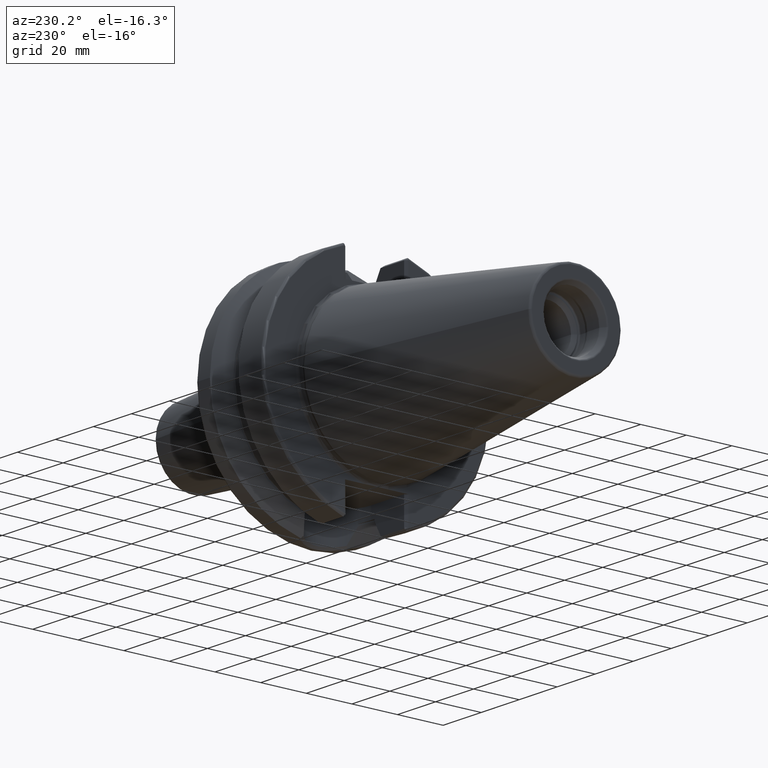
[diagram: clean part render]
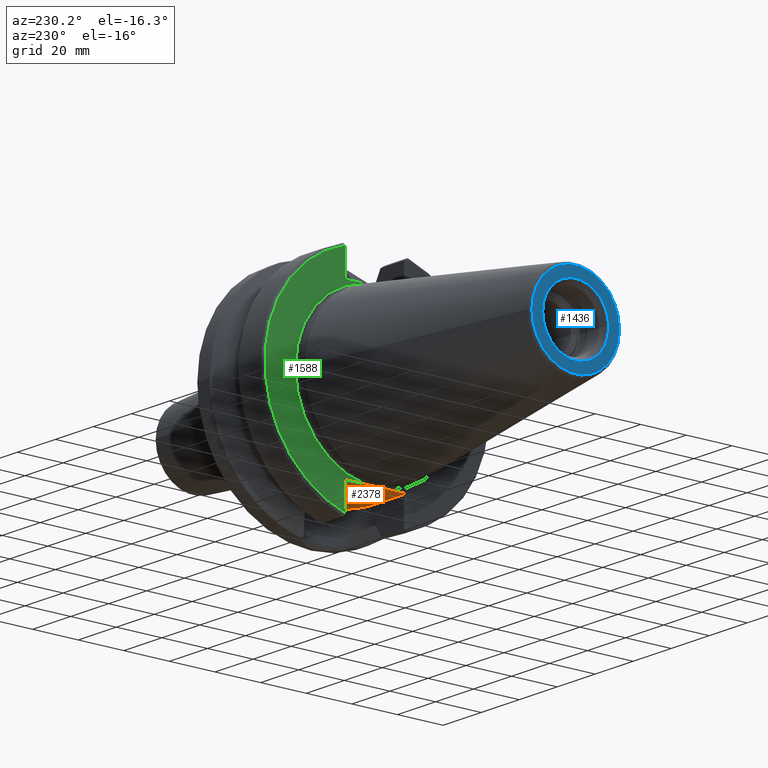
[diagram: same view with three faces highlighted in distinct colors, each labeled with its STEP entity id]
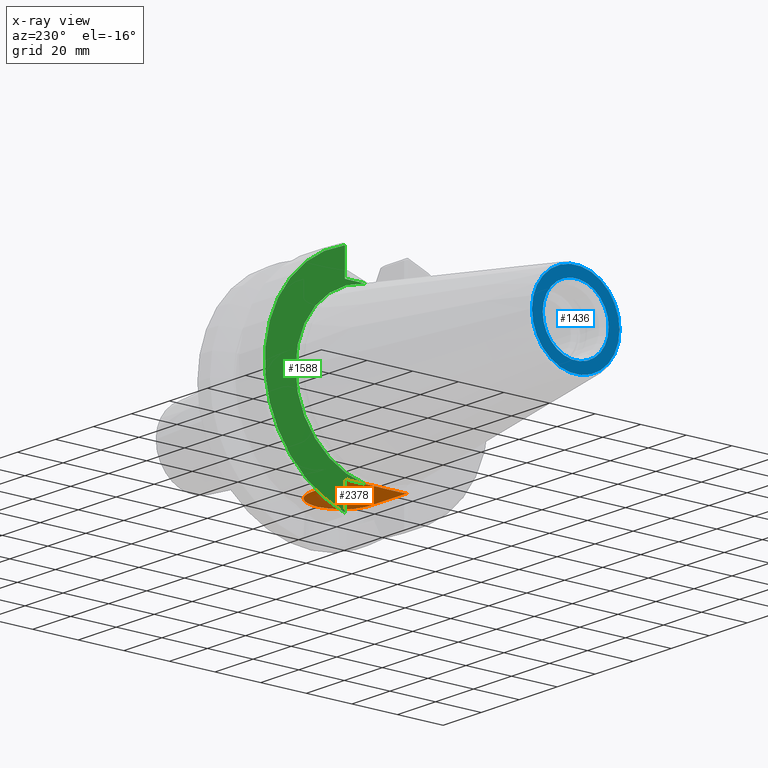
[diagram: x-ray of the same camera — body ghosted, the three highlighted faces saturated]
A machine part, auxiliary view with three faces highlighted in distinct colors.
The next image is the same camera in x-ray (body ghosted, the three faces saturated) — at least one of them is partly hidden behind the body in this view.
Their STEP definitions:

[orange] entity #2378 — the highlighted planar face has unit normal (0, 0, 1).
#116=CARTESIAN_POINT('',(3.E0,5.151759408202E0,-3.52E1));
#117=CARTESIAN_POINT('',(3.E0,4.661054534870E0,-3.52E1));
#118=CARTESIAN_POINT('',(2.985185415827E0,3.679726334622E0,-3.52E1));
#119=CARTESIAN_POINT('',(2.950323079572E0,2.207949548567E0,-3.52E1));
#120=CARTESIAN_POINT('',(2.926055980585E0,7.360772187789E-1,-3.52E1));
#121=CARTESIAN_POINT('',(2.926055295134E0,-7.360096390892E-1,-3.52E1));
#122=CARTESIAN_POINT('',(2.950321957577E0,-2.207902449886E0,-3.52E1));
#123=CARTESIAN_POINT('',(2.985185074233E0,-3.679708044781E0,-3.52E1));
#124=CARTESIAN_POINT('',(3.E0,-4.661048861242E0,-3.52E1));
#125=CARTESIAN_POINT('',(3.E0,-5.151759408202E0,-3.52E1));
#147=DIRECTION('',(7.071067811865E-1,-7.071067811865E-1,0.E0));
#148=VECTOR('',#147,1.414213562373E0);
#149=CARTESIAN_POINT('',(3.E0,1.39025E1,-3.52E1));
#150=LINE('',#149,#148);
#733=DIRECTION('',(-7.071067811865E-1,-7.071067811865E-1,0.E0));
#734=VECTOR('',#733,1.414213562373E0);
#735=CARTESIAN_POINT('',(4.E0,-1.29025E1,-3.52E1));
#736=LINE('',#735,#734);
#737=DIRECTION('',(-1.E0,0.E0,0.E0));
#738=VECTOR('',#737,1.73475E1);
#739=CARTESIAN_POINT('',(2.13475E1,1.29025E1,-3.52E1));
#740=LINE('',#739,#738);
#741=DIRECTION('',(0.E0,-1.E0,0.E0));
#742=VECTOR('',#741,8.750740591798E0);
#743=CARTESIAN_POINT('',(3.E0,1.39025E1,-3.52E1));
#744=LINE('',#743,#742);
#745=DIRECTION('',(0.E0,-1.E0,0.E0));
#746=VECTOR('',#745,8.750740591798E0);
#747=CARTESIAN_POINT('',(3.E0,-5.151759408202E0,-3.52E1));
#748=LINE('',#747,#746);
#749=DIRECTION('',(1.E0,0.E0,0.E0));
#750=VECTOR('',#749,1.73475E1);
#751=CARTESIAN_POINT('',(4.E0,-1.29025E1,-3.52E1));
#752=LINE('',#751,#750);
#753=CARTESIAN_POINT('',(2.13475E1,0.E0,-3.52E1));
#754=DIRECTION('',(0.E0,0.E0,1.E0));
#755=DIRECTION('',(0.E0,-1.E0,0.E0));
#756=AXIS2_PLACEMENT_3D('',#753,#754,#755);
#1314=CARTESIAN_POINT('',(2.13475E1,-1.29025E1,-3.52E1));
#1315=CARTESIAN_POINT('',(2.13475E1,1.29025E1,-3.52E1));
#1316=VERTEX_POINT('',#1314);
#1317=VERTEX_POINT('',#1315);
#1318=CARTESIAN_POINT('',(3.E0,5.151759408202E0,-3.52E1));
#1319=VERTEX_POINT('',#1318);
#1320=CARTESIAN_POINT('',(3.E0,-5.151759408202E0,-3.52E1));
#1321=VERTEX_POINT('',#1320);
#1367=CARTESIAN_POINT('',(4.E0,1.29025E1,-3.52E1));
#1369=VERTEX_POINT('',#1367);
#1371=CARTESIAN_POINT('',(3.E0,1.39025E1,-3.52E1));
#1373=VERTEX_POINT('',#1371);
#1377=CARTESIAN_POINT('',(3.E0,-1.39025E1,-3.52E1));
#1378=VERTEX_POINT('',#1377);
#1379=CARTESIAN_POINT('',(4.E0,-1.29025E1,-3.52E1));
#1381=VERTEX_POINT('',#1379);
#2363=CARTESIAN_POINT('',(0.E0,0.E0,-3.52E1));
#2364=DIRECTION('',(0.E0,0.E0,1.E0));
#2365=DIRECTION('',(1.E0,0.E0,0.E0));
#2366=AXIS2_PLACEMENT_3D('',#2363,#2364,#2365);
#2367=PLANE('',#2366);
#2368=ORIENTED_EDGE('',*,*,#1639,.T.);
#2369=ORIENTED_EDGE('',*,*,#1620,.F.);
#2370=ORIENTED_EDGE('',*,*,#1584,.T.);
#2371=ORIENTED_EDGE('',*,*,#1563,.T.);
#2372=ORIENTED_EDGE('',*,*,#1596,.T.);
#2373=ORIENTED_EDGE('',*,*,#2358,.F.);
#2374=ORIENTED_EDGE('',*,*,#1794,.T.);
#2375=ORIENTED_EDGE('',*,*,#1888,.T.);
#2376=EDGE_LOOP('',(#2368,#2369,#2370,#2371,#2372,#2373,#2374,#2375));
#2377=FACE_OUTER_BOUND('',#2376,.F.);
#2378=ADVANCED_FACE('',(#2377),#2367,.F.);
#126=B_SPLINE_CURVE_WITH_KNOTS('',3,(#116,#117,#118,#119,#120,#121,#122,#123,
#124,#125),.UNSPECIFIED.,.F.,.F.,(4,1,1,1,1,1,1,4),(0.E0,1.428571428571E-1,
2.857142857143E-1,4.285714285714E-1,5.714285714286E-1,7.142857142857E-1,
8.571428571429E-1,1.E0),.UNSPECIFIED.);
#757=CIRCLE('',#756,1.29025E1);
#1563=EDGE_CURVE('',#1319,#1321,#126,.T.);
#1584=EDGE_CURVE('',#1373,#1319,#744,.T.);
#1596=EDGE_CURVE('',#1321,#1378,#748,.T.);
#1620=EDGE_CURVE('',#1373,#1369,#150,.T.);
#1639=EDGE_CURVE('',#1317,#1369,#740,.T.);
#1794=EDGE_CURVE('',#1381,#1316,#752,.T.);
#1888=EDGE_CURVE('',#1316,#1317,#757,.T.);
#2358=EDGE_CURVE('',#1381,#1378,#736,.T.);

[blue] entity #1436 — the highlighted planar face has unit normal (1, 0, 0).
#2=CARTESIAN_POINT('',(-1.018E2,0.E0,0.E0));
#3=DIRECTION('',(-1.E0,0.E0,0.E0));
#4=DIRECTION('',(0.E0,1.E0,0.E0));
#5=AXIS2_PLACEMENT_3D('',#2,#3,#4);
#7=CARTESIAN_POINT('',(-1.018E2,0.E0,0.E0));
#8=DIRECTION('',(1.E0,0.E0,0.E0));
#9=DIRECTION('',(0.E0,1.E0,0.E0));
#10=AXIS2_PLACEMENT_3D('',#7,#8,#9);
#12=CARTESIAN_POINT('',(-1.018E2,0.E0,0.E0));
#13=DIRECTION('',(1.E0,0.E0,0.E0));
#14=DIRECTION('',(0.E0,1.E0,0.E0));
#15=AXIS2_PLACEMENT_3D('',#12,#13,#14);
#17=CARTESIAN_POINT('',(-1.018E2,0.E0,0.E0));
#18=DIRECTION('',(1.E0,0.E0,0.E0));
#19=DIRECTION('',(0.E0,-1.E0,0.E0));
#20=AXIS2_PLACEMENT_3D('',#17,#18,#19);
#1169=CARTESIAN_POINT('',(-1.018E2,1.921319540766E1,0.E0));
#1171=VERTEX_POINT('',#1169);
#1173=CARTESIAN_POINT('',(-1.018E2,-1.921319540766E1,0.E0));
#1175=VERTEX_POINT('',#1173);
#1298=CARTESIAN_POINT('',(-1.018E2,1.446188021535E1,0.E0));
#1299=CARTESIAN_POINT('',(-1.018E2,-1.446188021535E1,0.E0));
#1300=VERTEX_POINT('',#1298);
#1301=VERTEX_POINT('',#1299);
#1419=CARTESIAN_POINT('',(-1.018E2,0.E0,0.E0));
#1420=DIRECTION('',(1.E0,0.E0,0.E0));
#1421=DIRECTION('',(0.E0,-1.E0,0.E0));
#1422=AXIS2_PLACEMENT_3D('',#1419,#1420,#1421);
#1423=PLANE('',#1422);
#1425=ORIENTED_EDGE('',*,*,#1424,.F.);
#1427=ORIENTED_EDGE('',*,*,#1426,.T.);
#1428=EDGE_LOOP('',(#1425,#1427));
#1429=FACE_OUTER_BOUND('',#1428,.F.);
#1431=ORIENTED_EDGE('',*,*,#1430,.F.);
#1433=ORIENTED_EDGE('',*,*,#1432,.F.);
#1434=EDGE_LOOP('',(#1431,#1433));
#1435=FACE_BOUND('',#1434,.F.);
#1436=ADVANCED_FACE('',(#1429,#1435),#1423,.F.);
#6=CIRCLE('',#5,1.921319540766E1);
#11=CIRCLE('',#10,1.921319540766E1);
#16=CIRCLE('',#15,1.446188021535E1);
#21=CIRCLE('',#20,1.446188021535E1);
#1424=EDGE_CURVE('',#1171,#1175,#6,.T.);
#1426=EDGE_CURVE('',#1171,#1175,#11,.T.);
#1430=EDGE_CURVE('',#1300,#1301,#16,.T.);
#1432=EDGE_CURVE('',#1301,#1300,#21,.T.);

[green] entity #1588 — the highlighted planar face has unit normal (1, 0, 0).
#96=CARTESIAN_POINT('',(3.E0,0.E0,0.E0));
#97=DIRECTION('',(-1.E0,0.E0,0.E0));
#98=DIRECTION('',(0.E0,1.E0,0.E0));
#99=AXIS2_PLACEMENT_3D('',#96,#97,#98);
#127=DIRECTION('',(5.798787724366E-7,5.799135248072E-7,9.999999999997E-1));
#128=VECTOR('',#127,1.177335004622E1);
#129=CARTESIAN_POINT('',(2.999993172884E0,1.390249317248E1,-4.697335004621E1));
#130=LINE('',#129,#128);
#131=DIRECTION('',(-1.226013541637E-6,-1.226161370240E-6,9.999999999985E-1));
#132=VECTOR('',#131,1.177335390080E1);
#133=CARTESIAN_POINT('',(3.E0,1.39025E1,3.52E1));
#134=LINE('',#133,#132);
#588=CARTESIAN_POINT('',(3.E0,0.E0,0.E0));
#589=DIRECTION('',(-1.E0,0.E0,0.E0));
#590=DIRECTION('',(0.E0,2.837969049058E-1,9.588844126201E-1));
#591=AXIS2_PLACEMENT_3D('',#588,#589,#590);
#683=DIRECTION('',(0.E0,1.E0,0.E0));
#684=VECTOR('',#683,8.750740591798E0);
#685=CARTESIAN_POINT('',(3.E0,5.151759408202E0,3.52E1));
#686=LINE('',#685,#684);
#704=CARTESIAN_POINT('',(3.E0,0.E0,0.E0));
#705=DIRECTION('',(1.E0,0.E0,0.E0));
#706=DIRECTION('',(0.E0,1.E0,0.E0));
#707=AXIS2_PLACEMENT_3D('',#704,#705,#706);
#741=DIRECTION('',(0.E0,-1.E0,0.E0));
#742=VECTOR('',#741,8.750740591798E0);
#743=CARTESIAN_POINT('',(3.E0,1.39025E1,-3.52E1));
#744=LINE('',#743,#742);
#1240=CARTESIAN_POINT('',(3.E0,3.5575E1,0.E0));
#1242=VERTEX_POINT('',#1240);
#1310=CARTESIAN_POINT('',(3.E0,5.151759408202E0,3.52E1));
#1311=VERTEX_POINT('',#1310);
#1318=CARTESIAN_POINT('',(3.E0,5.151759408202E0,-3.52E1));
#1319=VERTEX_POINT('',#1318);
#1356=CARTESIAN_POINT('',(3.E0,1.390251954398E1,4.697334463905E1));
#1358=VERTEX_POINT('',#1356);
#1360=CARTESIAN_POINT('',(3.E0,1.39025E1,3.52E1));
#1361=VERTEX_POINT('',#1360);
#1370=CARTESIAN_POINT('',(2.999993172884E0,1.390249317248E1,-4.697335004621E1));
#1371=CARTESIAN_POINT('',(3.E0,1.39025E1,-3.52E1));
#1372=VERTEX_POINT('',#1370);
#1373=VERTEX_POINT('',#1371);
#1568=CARTESIAN_POINT('',(3.E0,0.E0,0.E0));
#1569=DIRECTION('',(1.E0,0.E0,0.E0));
#1570=DIRECTION('',(0.E0,-1.E0,0.E0));
#1571=AXIS2_PLACEMENT_3D('',#1568,#1569,#1570);
#1572=PLANE('',#1571);
#1574=ORIENTED_EDGE('',*,*,#1573,.F.);
#1576=ORIENTED_EDGE('',*,*,#1575,.F.);
#1578=ORIENTED_EDGE('',*,*,#1577,.F.);
#1580=ORIENTED_EDGE('',*,*,#1579,.F.);
#1582=ORIENTED_EDGE('',*,*,#1581,.F.);
#1583=ORIENTED_EDGE('',*,*,#1554,.T.);
#1585=ORIENTED_EDGE('',*,*,#1584,.F.);
#1586=EDGE_LOOP('',(#1574,#1576,#1578,#1580,#1582,#1583,#1585));
#1587=FACE_OUTER_BOUND('',#1586,.F.);
#1588=ADVANCED_FACE('',(#1587),#1572,.F.);
#100=CIRCLE('',#99,3.5575E1);
#592=CIRCLE('',#591,4.89875E1);
#708=CIRCLE('',#707,3.5575E1);
#1554=EDGE_CURVE('',#1242,#1319,#100,.T.);
#1573=EDGE_CURVE('',#1372,#1373,#130,.T.);
#1575=EDGE_CURVE('',#1358,#1372,#592,.T.);
#1577=EDGE_CURVE('',#1361,#1358,#134,.T.);
#1579=EDGE_CURVE('',#1311,#1361,#686,.T.);
#1581=EDGE_CURVE('',#1242,#1311,#708,.T.);
#1584=EDGE_CURVE('',#1373,#1319,#744,.T.);